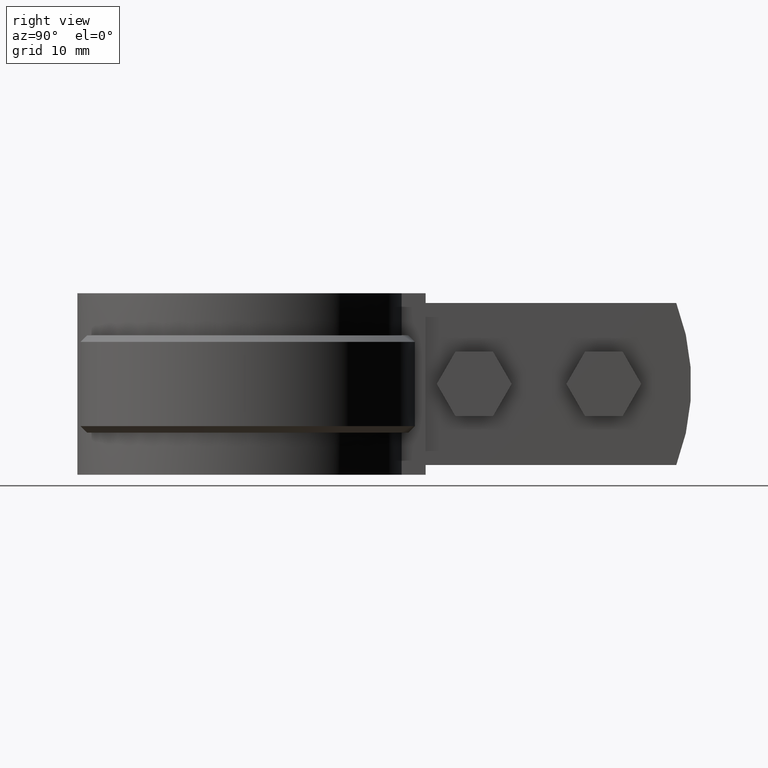
[diagram: clean part render]
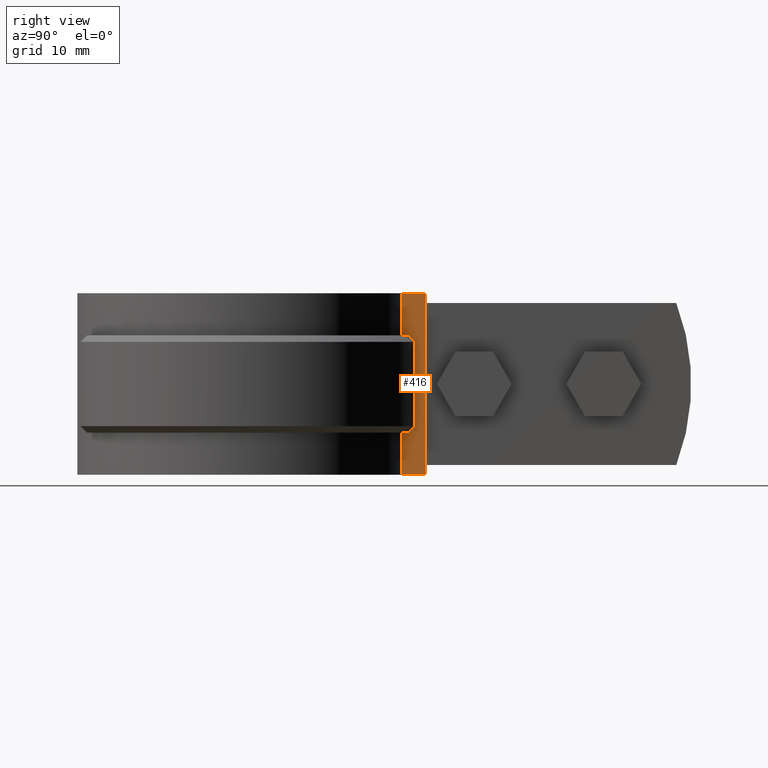
[diagram: same view with one face highlighted and labeled with its STEP entity id]
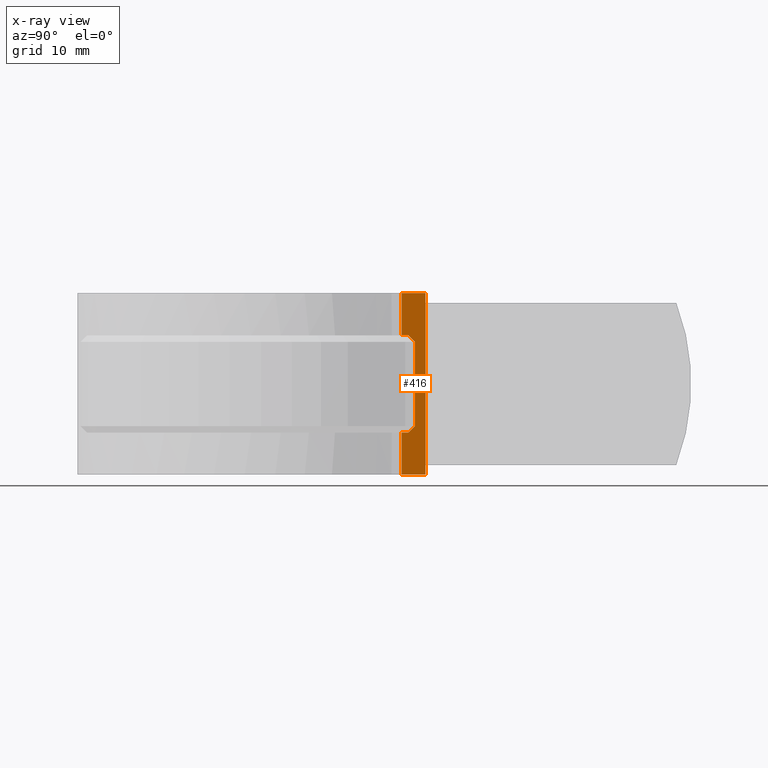
[diagram: x-ray of the same camera — body ghosted, the highlighted face saturated]
A machine part, right view. The second image highlights one B-rep face of the part: STEP entity #416.
The next image is the same camera in x-ray: the body ghosted, the highlighted face saturated — about 0% of this face is hidden behind the body in this view.
In plain terms, the highlighted planar face has unit normal (1, -0, 0).
Its self-contained STEP definition (entity closure, byte-faithful):
#416 = ADVANCED_FACE( '', ( #756 ), #757, .T. );
#756 = FACE_OUTER_BOUND( '', #1602, .T. );
#757 = PLANE( '', #1603 );
#1602 = EDGE_LOOP( '', ( #3900, #3901, #3902, #3903, #3904, #3905, #3906, #3907, #3908, #3909 ) );
#1603 = AXIS2_PLACEMENT_3D( '', #3910, #3911, #3912 );
#3900 = ORIENTED_EDGE( '', *, *, #5229, .T. );
#3901 = ORIENTED_EDGE( '', *, *, #5188, .T. );
#3902 = ORIENTED_EDGE( '', *, *, #5192, .F. );
#3903 = ORIENTED_EDGE( '', *, *, #5227, .F. );
#3904 = ORIENTED_EDGE( '', *, *, #5230, .T. );
#3905 = ORIENTED_EDGE( '', *, *, #5231, .T. );
#3906 = ORIENTED_EDGE( '', *, *, #5232, .F. );
#3907 = ORIENTED_EDGE( '', *, *, #5233, .T. );
#3908 = ORIENTED_EDGE( '', *, *, #5234, .F. );
#3909 = ORIENTED_EDGE( '', *, *, #5220, .F. );
#3910 = CARTESIAN_POINT( '', ( 6.10000000000001, 24.7029962757557, -26.5000000000000 ) );
#3911 = DIRECTION( '', ( 1.00000000000000, -6.07153216591882E-017, 0.000000000000000 ) );
#3912 = DIRECTION( '', ( -6.07153216591882E-017, -1.00000000000000, 0.000000000000000 ) );
#5188 = EDGE_CURVE( '', #5975, #5973, #5976, .T. );
#5192 = EDGE_CURVE( '', #5980, #5973, #5982, .T. );
#5220 = EDGE_CURVE( '', #6030, #6032, #6033, .T. );
#5227 = EDGE_CURVE( '', #6043, #5980, #6045, .T. );
#5229 = EDGE_CURVE( '', #6030, #5975, #6047, .T. );
#5230 = EDGE_CURVE( '', #6043, #6048, #6049, .T. );
#5231 = EDGE_CURVE( '', #6048, #6050, #6051, .T. );
#5232 = EDGE_CURVE( '', #6052, #6050, #6053, .T. );
#5233 = EDGE_CURVE( '', #6052, #6054, #6055, .T. );
#5234 = EDGE_CURVE( '', #6032, #6054, #6056, .T. );
#5973 = VERTEX_POINT( '', #9312 );
#5975 = VERTEX_POINT( '', #9315 );
#5976 = LINE( '', #9316, #9317 );
#5980 = VERTEX_POINT( '', #9323 );
#5982 = LINE( '', #9325, #9326 );
#6030 = VERTEX_POINT( '', #9543 );
#6032 = VERTEX_POINT( '', #9545 );
#6033 = LINE( '', #9546, #9547 );
#6043 = VERTEX_POINT( '', #9561 );
#6045 = LINE( '', #9563, #9564 );
#6047 = LINE( '', #9567, #9568 );
#6048 = VERTEX_POINT( '', #9569 );
#6049 = LINE( '', #9570, #9571 );
#6050 = VERTEX_POINT( '', #9572 );
#6051 = B_SPLINE_CURVE_WITH_KNOTS( '', 3, ( #9573, #9574, #9575, #9576 ), .UNSPECIFIED., .F., .F., ( 4, 4 ), ( 0.000000000000000, 0.00143319236465072 ), .UNSPECIFIED. );
#6052 = VERTEX_POINT( '', #9577 );
#6053 = LINE( '', #9578, #9579 );
#6054 = VERTEX_POINT( '', #9580 );
#6055 = B_SPLINE_CURVE_WITH_KNOTS( '', 3, ( #9581, #9582, #9583, #9584 ), .UNSPECIFIED., .F., .F., ( 4, 4 ), ( 1.96261557335472E-017, 0.00143319236465072 ), .UNSPECIFIED. );
#6056 = LINE( '', #9585, #9586 );
#9312 = CARTESIAN_POINT( '', ( 6.10000000000001, 28.4025110199727, 1.50000000000000 ) );
#9315 = CARTESIAN_POINT( '', ( 6.10000000000001, 28.4025110199727, -26.5000000000000 ) );
#9316 = CARTESIAN_POINT( '', ( 6.10000000000001, 28.4025110199727, -26.5000000000000 ) );
#9317 = VECTOR( '', #10419, 1000.00000000000 );
#9323 = CARTESIAN_POINT( '', ( 6.10000000000001, 24.7029962757557, 1.50000000000000 ) );
#9325 = CARTESIAN_POINT( '', ( 6.10000000000001, 24.7029962757557, 1.50000000000000 ) );
#9326 = VECTOR( '', #10425, 1000.00000000000 );
#9543 = CARTESIAN_POINT( '', ( 6.10000000000001, 24.7029962757557, -26.5000000000000 ) );
#9545 = CARTESIAN_POINT( '', ( 6.10000000000001, 24.7029962757557, -20.0000000000000 ) );
#9546 = CARTESIAN_POINT( '', ( 6.10000000000001, 24.7029962757557, -26.5000000000000 ) );
#9547 = VECTOR( '', #10463, 1000.00000000000 );
#9561 = CARTESIAN_POINT( '', ( 6.10000000000001, 24.7029962757557, -5.00000000000000 ) );
#9563 = CARTESIAN_POINT( '', ( 6.10000000000001, 24.7029962757557, -26.5000000000000 ) );
#9564 = VECTOR( '', #10477, 1000.00000000000 );
#9567 = CARTESIAN_POINT( '', ( 6.10000000000001, 24.7029962757557, -26.5000000000000 ) );
#9568 = VECTOR( '', #10479, 1000.00000000000 );
#9569 = CARTESIAN_POINT( '', ( 6.10000000000000, 25.7318484567277, -5.00000000000000 ) );
#9570 = CARTESIAN_POINT( '', ( 6.10000000000000, 24.7029962757557, -5.00000000000000 ) );
#9571 = VECTOR( '', #10480, 1000.00000000000 );
#9572 = CARTESIAN_POINT( '', ( 6.10000000000000, 26.7585131313382, -6.00000000000000 ) );
#9573 = CARTESIAN_POINT( '', ( 6.10000000000000, 25.7318484567277, -5.00000000000000 ) );
#9574 = CARTESIAN_POINT( '', ( 6.10000000000000, 26.0742402876680, -5.33315843095395 ) );
#9575 = CARTESIAN_POINT( '', ( 6.10000000000001, 26.4164555659505, -5.66649838385494 ) );
#9576 = CARTESIAN_POINT( '', ( 6.10000000000001, 26.7585131313382, -6.00000000000000 ) );
#9577 = CARTESIAN_POINT( '', ( 6.10000000000000, 26.7585131313382, -19.0000000000000 ) );
#9578 = CARTESIAN_POINT( '', ( 6.10000000000000, 26.7585131313382, -20.0000000000000 ) );
#9579 = VECTOR( '', #10481, 1000.00000000000 );
#9580 = CARTESIAN_POINT( '', ( 6.10000000000000, 25.7318484567277, -20.0000000000000 ) );
#9581 = CARTESIAN_POINT( '', ( 6.10000000000000, 26.7585131313382, -19.0000000000000 ) );
#9582 = CARTESIAN_POINT( '', ( 6.10000000000000, 26.4164555659505, -19.3335016161451 ) );
#9583 = CARTESIAN_POINT( '', ( 6.10000000000001, 26.0742402876680, -19.6668415690460 ) );
#9584 = CARTESIAN_POINT( '', ( 6.10000000000001, 25.7318484567277, -20.0000000000000 ) );
#9585 = CARTESIAN_POINT( '', ( 6.10000000000000, 24.7029962757557, -20.0000000000000 ) );
#9586 = VECTOR( '', #10482, 1000.00000000000 );
#10419 = DIRECTION( '', ( 0.000000000000000, 0.000000000000000, 1.00000000000000 ) );
#10425 = DIRECTION( '', ( 6.07153216591882E-017, 1.00000000000000, 0.000000000000000 ) );
#10463 = DIRECTION( '', ( 0.000000000000000, 0.000000000000000, 1.00000000000000 ) );
#10477 = DIRECTION( '', ( 0.000000000000000, 0.000000000000000, 1.00000000000000 ) );
#10479 = DIRECTION( '', ( 6.07153216591882E-017, 1.00000000000000, 0.000000000000000 ) );
#10480 = DIRECTION( '', ( 5.55111512312578E-017, 1.00000000000000, 0.000000000000000 ) );
#10481 = DIRECTION( '', ( 0.000000000000000, 0.000000000000000, 1.00000000000000 ) );
#10482 = DIRECTION( '', ( 5.55111512312578E-017, 1.00000000000000, 0.000000000000000 ) );